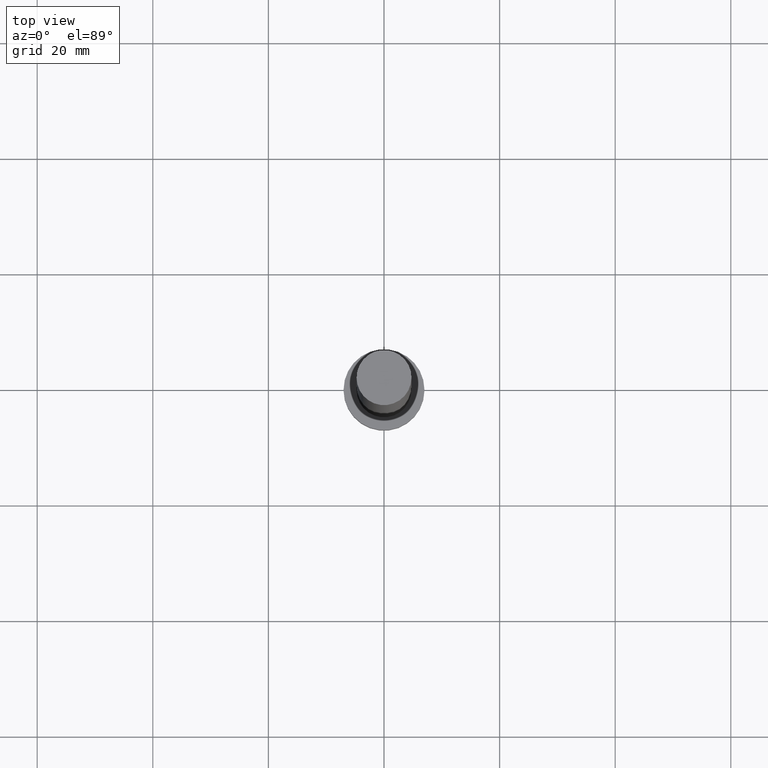
[diagram: clean part render]
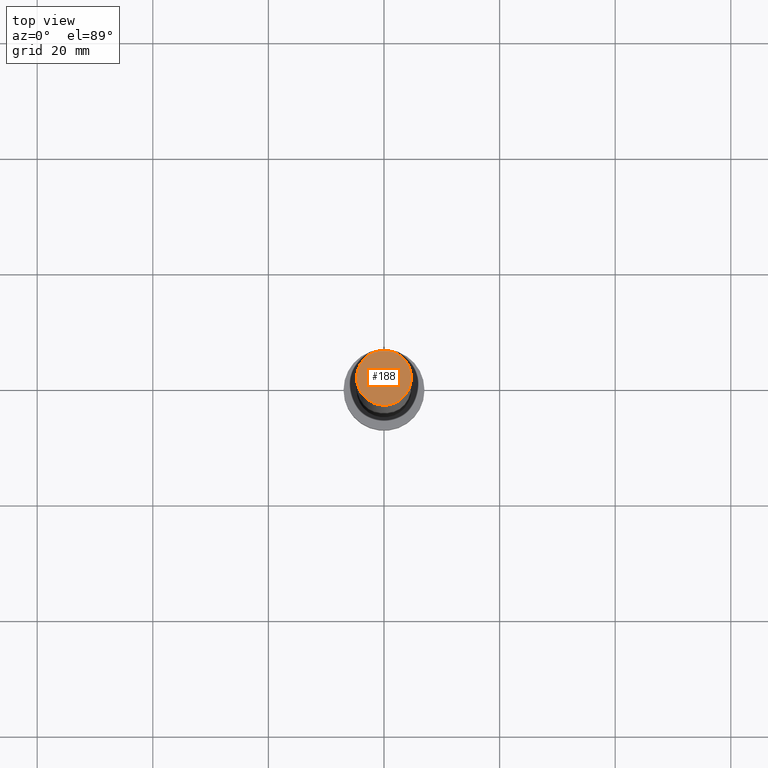
[diagram: same view with one face highlighted and labeled with its STEP entity id]
A machine part, top view. The second image highlights one B-rep face of the part: STEP entity #188.
In plain terms, the highlighted planar face has unit normal (0, 0, 1).
Its self-contained STEP definition (entity closure, byte-faithful):
#10 = ORIENTED_EDGE ( 'NONE', *, *, #77, .T. ) ;
#24 = FACE_OUTER_BOUND ( 'NONE', #124, .T. ) ;
#32 = EDGE_CURVE ( 'NONE', #55, #198, #82, .T. ) ;
#47 = AXIS2_PLACEMENT_3D ( 'NONE', #115, #96, #62 ) ;
#49 = DIRECTION ( 'NONE',  ( 1.000000000000000000, 0.000000000000000000, 0.000000000000000000 ) ) ;
#51 = DIRECTION ( 'NONE',  ( 0.000000000000000000, 0.000000000000000000, 1.000000000000000000 ) ) ;
#55 = VERTEX_POINT ( 'NONE', #134 ) ;
#62 = DIRECTION ( 'NONE',  ( 1.000000000000000000, 0.000000000000000000, -0.000000000000000000 ) ) ;
#69 = DIRECTION ( 'NONE',  ( 1.000000000000000000, 0.000000000000000000, 0.000000000000000000 ) ) ;
#77 = EDGE_CURVE ( 'NONE', #198, #55, #142, .T. ) ;
#82 = CIRCLE ( 'NONE', #149, 4.750000000000000888 ) ;
#84 = ORIENTED_EDGE ( 'NONE', *, *, #32, .T. ) ;
#92 = CARTESIAN_POINT ( 'NONE',  ( 0.000000000000000000, 0.000000000000000000, 125.0000000000000000 ) ) ;
#93 = CARTESIAN_POINT ( 'NONE',  ( 0.000000000000000000, 0.000000000000000000, 125.0000000000000000 ) ) ;
#96 = DIRECTION ( 'NONE',  ( 0.000000000000000000, 0.000000000000000000, 1.000000000000000000 ) ) ;
#115 = CARTESIAN_POINT ( 'NONE',  ( 0.000000000000000000, 0.000000000000000000, 125.0000000000000000 ) ) ;
#124 = EDGE_LOOP ( 'NONE', ( #84, #10 ) ) ;
#134 = CARTESIAN_POINT ( 'NONE',  ( -4.750000000000000888, 0.000000000000000000, 125.0000000000000000 ) ) ;
#140 = CARTESIAN_POINT ( 'NONE',  ( 4.750000000000000888, 5.817072295949928412E-16, 125.0000000000000000 ) ) ;
#142 = CIRCLE ( 'NONE', #237, 4.750000000000000888 ) ;
#149 = AXIS2_PLACEMENT_3D ( 'NONE', #93, #51, #69 ) ;
#169 = DIRECTION ( 'NONE',  ( 0.000000000000000000, 0.000000000000000000, 1.000000000000000000 ) ) ;
#188 = ADVANCED_FACE ( 'NONE', ( #24 ), #212, .T. ) ;
#198 = VERTEX_POINT ( 'NONE', #140 ) ;
#212 = PLANE ( 'NONE',  #47 ) ;
#237 = AXIS2_PLACEMENT_3D ( 'NONE', #92, #169, #49 ) ;